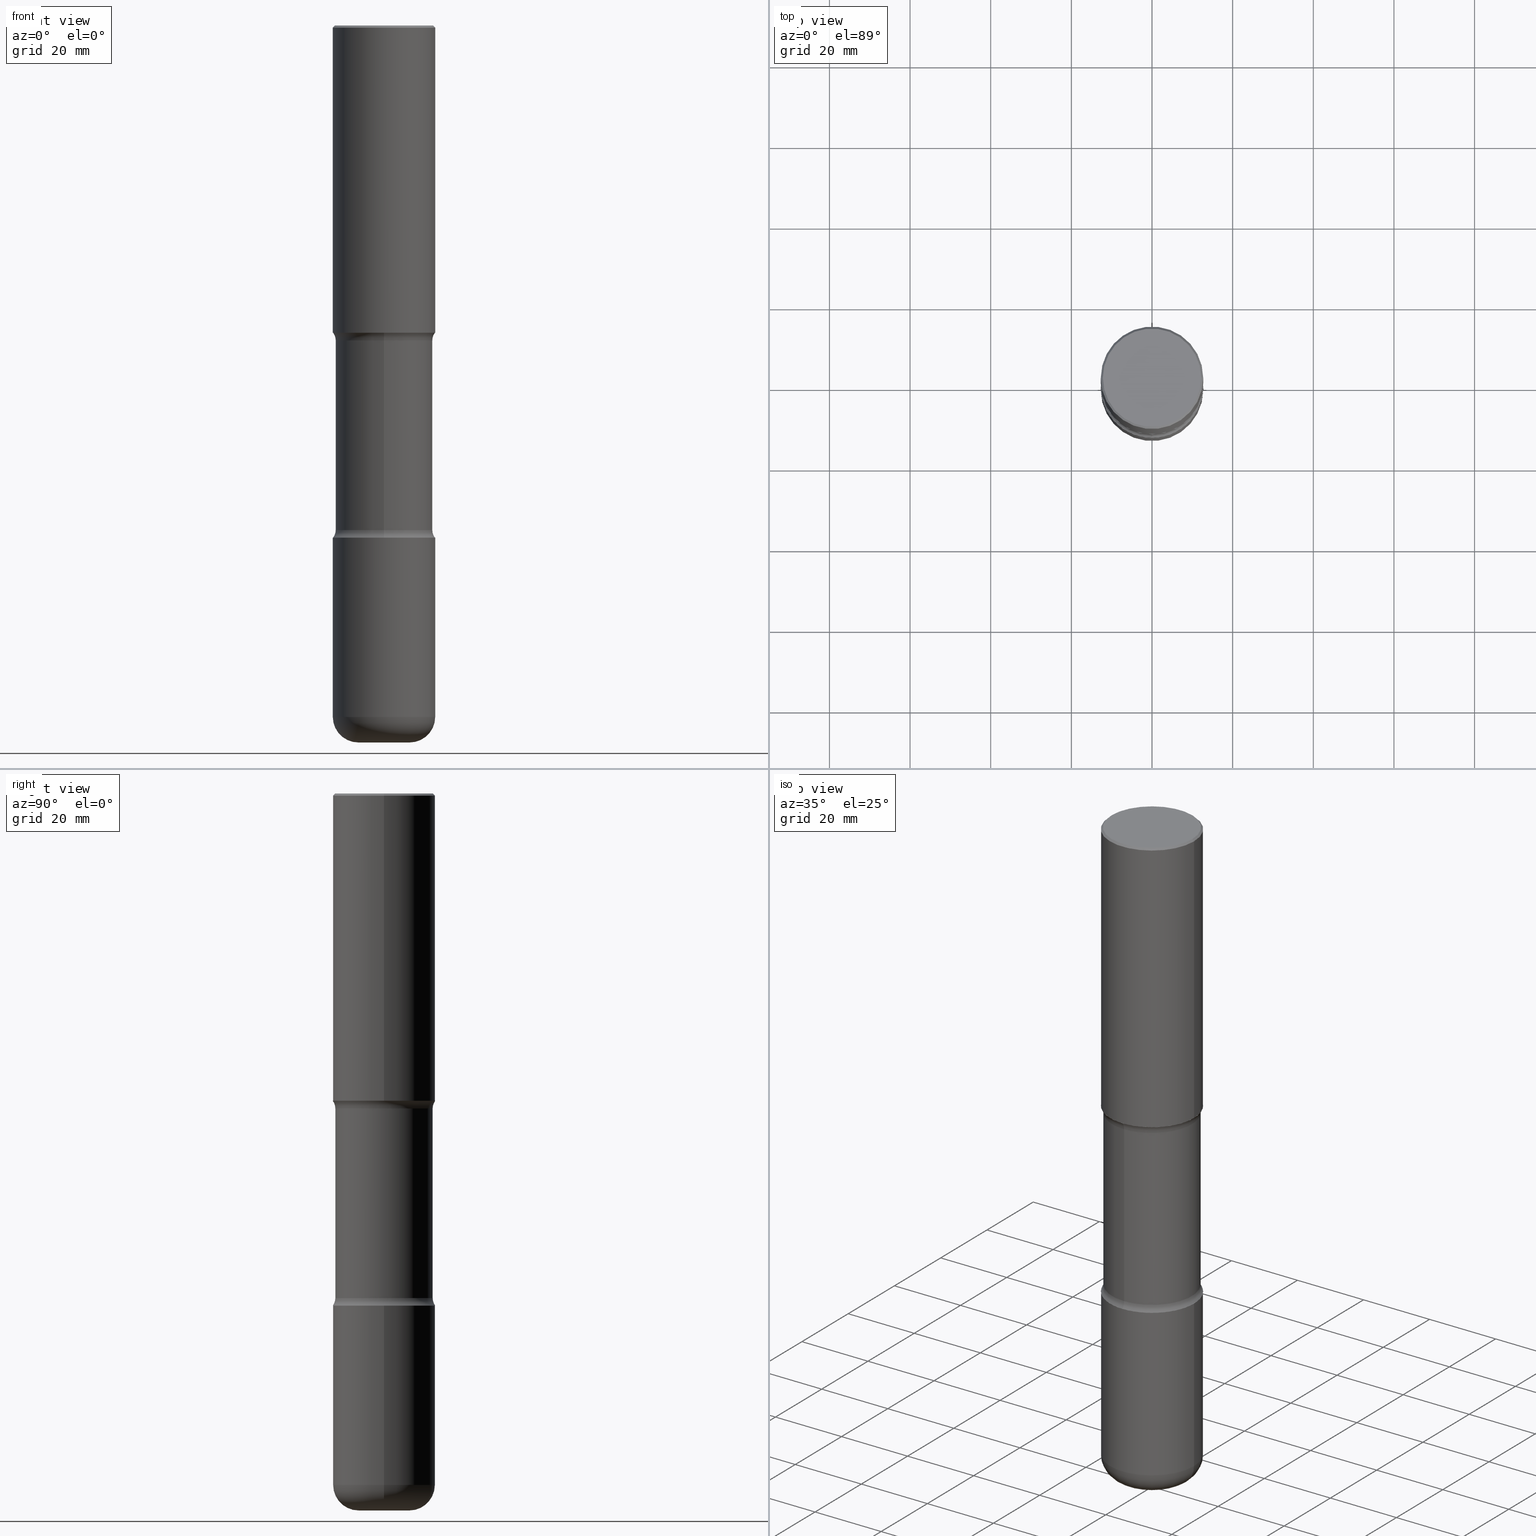
[diagram: canonical four-view strip — front | top / right | iso, engineering-drawing reading convention]
A machine part, canonical four-view strip (front | top / right | iso — engineering-drawing reading convention). The complete STEP part file that produces these views, byte-faithful:
ISO-10303-21;
HEADER;
FILE_DESCRIPTION (( 'STEP AP203' ),
    '1' );
FILE_NAME ('37982.STEP',
    '2024-03-02T02:05:53',
    ( '' ),
    ( '' ),
    'SwSTEP 2.0',
    'SolidWorks 2023',
    '' );
FILE_SCHEMA (( 'CONFIG_CONTROL_DESIGN' ));
ENDSEC;

DATA;
#1 = CARTESIAN_POINT ( 'NONE',  ( 7.336406418555407548E-29, -1.047444401652943320E-14, -2.999999999999999112 ) ) ;
#2 = CC_DESIGN_PERSON_AND_ORGANIZATION_ASSIGNMENT ( #184, #309, ( #128 ) ) ;
#3 = CARTESIAN_POINT ( 'NONE',  ( 3.316907271901148659E-15, 0.4749999999999757194, -7.000000000000000000 ) ) ;
#4 = VECTOR ( 'NONE', #78, 39.37007874015748143 ) ;
#5 = DIRECTION ( 'NONE',  ( 2.438088387897960049E-29, -3.491481338843145188E-15, -1.000000000000000000 ) ) ;
#6 = DIRECTION ( 'NONE',  ( 1.000000000000000000, -6.860497997771530774E-15, 4.841678745011831520E-29 ) ) ;
#7 = APPLICATION_PROTOCOL_DEFINITION ( 'international standard', 'config_control_design', 1994, #353 ) ;
#8 = CARTESIAN_POINT ( 'NONE',  ( 0.4999999999999999445, -3.500078625662628685E-15, -0.02000000000000013572 ) ) ;
#9 = DATE_AND_TIME ( #399, #245 ) ;
#10 = VECTOR ( 'NONE', #517, 39.37007874015748143 ) ;
#11 = CIRCLE ( 'NONE', #547, 0.2500000000000004996 ) ;
#12 = CIRCLE ( 'NONE', #113, 0.2500000000000004996 ) ;
#13 = ORIENTED_EDGE ( 'NONE', *, *, #262, .T. ) ;
#14 = ORIENTED_EDGE ( 'NONE', *, *, #179, .T. ) ;
#15 = APPROVAL_STATUS ( 'not_yet_approved' ) ;
#16 = ORIENTED_EDGE ( 'NONE', *, *, #457, .F. ) ;
#17 = EDGE_CURVE ( 'NONE', #234, #231, #11, .T. ) ;
#18 = EDGE_CURVE ( 'NONE', #493, #465, #300, .T. ) ;
#19 = CARTESIAN_POINT ( 'NONE',  ( 0.2500000000000004996, -2.531323970661280518E-14, -6.750000000000000888 ) ) ;
#20 = VECTOR ( 'NONE', #323, 39.37007874015748143 ) ;
#21 = ADVANCED_BREP_SHAPE_REPRESENTATION ( '37982', ( #411, #404, #420, #556 ), #328 ) ;
#22 = CARTESIAN_POINT ( 'NONE',  ( 0.000000000000000000, 0.000000000000000000, 0.000000000000000000 ) ) ;
#23 = DIRECTION ( 'NONE',  ( -2.445468806185136597E-29, 3.491481338843145583E-15, 1.000000000000000000 ) ) ;
#24 = DIRECTION ( 'NONE',  ( 6.860497997771531562E-15, 1.000000000000000000, 0.000000000000000000 ) ) ;
#25 = CC_DESIGN_PERSON_AND_ORGANIZATION_ASSIGNMENT ( #485, #316, ( #128 ) ) ;
#26 = EDGE_CURVE ( 'NONE', #538, #551, #248, .T. ) ;
#27 = CIRCLE ( 'NONE', #357, 0.4750000000000001443 ) ;
#28 = FACE_OUTER_BOUND ( 'NONE', #428, .T. ) ;
#29 = CONICAL_SURFACE ( 'NONE', #219, 0.4999999999999999445, 0.7853981633974477239 ) ;
#30 = ORIENTED_EDGE ( 'NONE', *, *, #17, .F. ) ;
#31 = EDGE_CURVE ( 'NONE', #382, #143, #459, .T. ) ;
#32 = ORIENTED_EDGE ( 'NONE', *, *, #548, .F. ) ;
#33 = CARTESIAN_POINT ( 'NONE',  ( -3.430248998885697150E-15, -0.5000000000000112133, -2.999999999999997335 ) ) ;
#34 = ORIENTED_EDGE ( 'NONE', *, *, #308, .F. ) ;
#35 = DIRECTION ( 'NONE',  ( 6.982962677686265922E-15, 1.000000000000000000, -2.300503573612011028E-15 ) ) ;
#36 = DIRECTION ( 'NONE',  ( 6.982962677686266711E-15, 1.000000000000000000, -4.370956789862819572E-15 ) ) ;
#37 = DIRECTION ( 'NONE',  ( 1.000000000000000000, -6.982962677686262766E-15, 0.000000000000000000 ) ) ;
#38 = AXIS2_PLACEMENT_3D ( 'NONE', #124, #304, #430 ) ;
#39 = CARTESIAN_POINT ( 'NONE',  ( -4.116298798662799188E-15, -0.6000000000000174083, -4.924999999999996270 ) ) ;
#40 = DIRECTION ( 'NONE',  ( -2.445468806185136597E-29, 3.491481338843145583E-15, 1.000000000000000000 ) ) ;
#41 = DIRECTION ( 'NONE',  ( 1.000000000000000000, -6.982962677686265922E-15, 4.876176775795935793E-29 ) ) ;
#42 = EDGE_CURVE ( 'NONE', #105, #551, #213, .T. ) ;
#43 = DIRECTION ( 'NONE',  ( -6.982962677686264344E-15, -1.000000000000000000, 0.000000000000000000 ) ) ;
#44 = DIRECTION ( 'NONE',  ( -2.445468806185136597E-29, 3.491481338843145583E-15, 1.000000000000000000 ) ) ;
#45 = CARTESIAN_POINT ( 'NONE',  ( 0.4799999999999998157, -3.396558832296481310E-15, 1.707404996042524007E-17 ) ) ;
#46 = ADVANCED_FACE ( 'NONE', ( #384 ), #415, .F. ) ;
#47 = DATE_TIME_ROLE ( 'classification_date' ) ;
#48 = LOCAL_TIME ( 21, 5, 53.00000000000000000, #186 ) ;
#49 = CIRCLE ( 'NONE', #389, 0.2500000000000004996 ) ;
#50 = COORDINATED_UNIVERSAL_TIME_OFFSET ( 5, 0, .BEHIND. ) ;
#51 = LINE ( 'NONE', #8, #86 ) ;
#52 = EDGE_CURVE ( 'NONE', #110, #105, #290, .T. ) ;
#53 = PERSON_AND_ORGANIZATION ( #354, #201 ) ;
#54 = EDGE_CURVE ( 'NONE', #231, #198, #12, .T. ) ;
#55 = CYLINDRICAL_SURFACE ( 'NONE', #350, 0.5000000000000004441 ) ;
#56 = TOROIDAL_SURFACE ( 'NONE', #376, 0.2500000000000004996, 0.2500000000000004996 ) ;
#57 = AXIS2_PLACEMENT_3D ( 'NONE', #499, #511, #71 ) ;
#58 = ORIENTED_EDGE ( 'NONE', *, *, #141, .T. ) ;
#59 = VERTEX_POINT ( 'NONE', #159 ) ;
#60 = CC_DESIGN_PERSON_AND_ORGANIZATION_ASSIGNMENT ( #178, #266, ( #89 ) ) ;
#61 = EDGE_LOOP ( 'NONE', ( #362, #34, #329, #58 ) ) ;
#62 = ORIENTED_EDGE ( 'NONE', *, *, #107, .T. ) ;
#63 = DIRECTION ( 'NONE',  ( 1.000000000000000000, -6.982962677686264344E-15, 0.000000000000000000 ) ) ;
#64 = ORIENTED_EDGE ( 'NONE', *, *, #479, .T. ) ;
#65 = AXIS2_PLACEMENT_3D ( 'NONE', #478, #260, #36 ) ;
#66 = ORIENTED_EDGE ( 'NONE', *, *, #179, .F. ) ;
#67 = DIRECTION ( 'NONE',  ( -2.445468806185136597E-29, 3.491481338843145583E-15, 1.000000000000000000 ) ) ;
#68 = VERTEX_POINT ( 'NONE', #45 ) ;
#69 = CARTESIAN_POINT ( 'NONE',  ( 7.336406418555407548E-29, -1.047444401652943320E-14, -2.999999999999999112 ) ) ;
#70 = CARTESIAN_POINT ( 'NONE',  ( -4.116298798662844153E-15, -0.6000000000000108580, -3.074999999999998401 ) ) ;
#71 = DIRECTION ( 'NONE',  ( 6.982962677686265133E-15, 1.000000000000000000, -3.278217592397113101E-15 ) ) ;
#72 = DIRECTION ( 'NONE',  ( 1.000000000000000000, -6.982962677686265133E-15, 4.883557194083112340E-29 ) ) ;
#73 = CARTESIAN_POINT ( 'NONE',  ( -0.2500000000000004996, -2.133939894544624343E-14, -7.000000000000001776 ) ) ;
#74 = ORIENTED_EDGE ( 'NONE', *, *, #196, .T. ) ;
#75 = CARTESIAN_POINT ( 'NONE',  ( -0.4999999999999999445, 3.421651712066269663E-15, -0.02000000000000013572 ) ) ;
#76 = CIRCLE ( 'NONE', #467, 0.5000000000000002220 ) ;
#77 = CC_DESIGN_PERSON_AND_ORGANIZATION_ASSIGNMENT ( #491, #95, ( #339 ) ) ;
#78 = DIRECTION ( 'NONE',  ( 2.495638921910708014E-29, -3.419634877618474112E-15, -1.000000000000000000 ) ) ;
#79 = LINE ( 'NONE', #3, #265 ) ;
#80 = ORIENTED_EDGE ( 'NONE', *, *, #17, .T. ) ;
#81 = ADVANCED_FACE ( 'NONE', ( #392 ), #439, .F. ) ;
#82 = CARTESIAN_POINT ( 'NONE',  ( 7.336406418555407548E-29, -1.047444401652943320E-14, -2.999999999999999112 ) ) ;
#83 = PLANE ( 'NONE',  #492 ) ;
#84 = CIRCLE ( 'NONE', #367, 0.5000000000000005551 ) ;
#85 = DIRECTION ( 'NONE',  ( -1.000000000000000000, 6.982962677686265922E-15, -4.876176775795935793E-29 ) ) ;
#86 = VECTOR ( 'NONE', #180, 39.37007874015748143 ) ;
#87 = FACE_OUTER_BOUND ( 'NONE', #338, .T. ) ;
#88 = FACE_OUTER_BOUND ( 'NONE', #425, .T. ) ;
#89 = PRODUCT_DEFINITION ( 'UNKNOWN', '', #128, #289 ) ;
#90 = CARTESIAN_POINT ( 'NONE',  ( -0.5000000000000004441, 3.552713678800504085E-15, -2.459467545127455133E-29 ) ) ;
#91 = CARTESIAN_POINT ( 'NONE',  ( -3.344492773913550718E-15, -0.4750000000000109690, -3.074999999999998401 ) ) ;
#92 = DIRECTION ( 'NONE',  ( -2.445468806185136877E-29, 3.491481338843145188E-15, 1.000000000000000000 ) ) ;
#93 = AXIS2_PLACEMENT_3D ( 'NONE', #301, #342, #132 ) ;
#94 = AXIS2_PLACEMENT_3D ( 'NONE', #151, #494, #72 ) ;
#95 = PERSON_AND_ORGANIZATION_ROLE ( 'classification_officer' ) ;
#96 = ADVANCED_FACE ( 'NONE', ( #352 ), #280, .T. ) ;
#97 = APPROVAL_DATE_TIME ( #9, #416 ) ;
#98 = EDGE_LOOP ( 'NONE', ( #312, #469 ) ) ;
#99 = CALENDAR_DATE ( 2024, 1, 3 ) ;
#100 = ORIENTED_EDGE ( 'NONE', *, *, #296, .F. ) ;
#101 = VERTEX_POINT ( 'NONE', #218 ) ;
#102 = CC_DESIGN_APPROVAL ( #424, ( #128 ) ) ;
#103 = VECTOR ( 'NONE', #414, 39.37007874015748143 ) ;
#104 = PERSON_AND_ORGANIZATION_ROLE ( 'design_owner' ) ;
#105 = VERTEX_POINT ( 'NONE', #133 ) ;
#106 = CARTESIAN_POINT ( 'NONE',  ( 7.236066187104263592E-29, -1.061813693897877772E-14, -2.999999999999999112 ) ) ;
#107 = EDGE_CURVE ( 'NONE', #293, #110, #147, .T. ) ;
#108 = CARTESIAN_POINT ( 'NONE',  ( 0.2500000000000004996, -2.618611004132359483E-14, -7.000000000000001776 ) ) ;
#109 = ADVANCED_FACE ( 'NONE', ( #513 ), #559, .T. ) ;
#110 = VERTEX_POINT ( 'NONE', #442 ) ;
#111 = ORIENTED_EDGE ( 'NONE', *, *, #250, .F. ) ;
#112 = CARTESIAN_POINT ( 'NONE',  ( 7.424434616114947917E-29, -1.087289751662588659E-14, -3.075000000000000178 ) ) ;
#113 = AXIS2_PLACEMENT_3D ( 'NONE', #440, #264, #155 ) ;
#114 = LINE ( 'NONE', #190, #387 ) ;
#115 = CARTESIAN_POINT ( 'NONE',  ( 4.189777606611881511E-15, 0.5999999999999829914, -4.925000000000000711 ) ) ;
#116 = CYLINDRICAL_SURFACE ( 'NONE', #386, 0.5000000000000004441 ) ;
#117 = ORIENTED_EDGE ( 'NONE', *, *, #438, .T. ) ;
#118 = CYLINDRICAL_SURFACE ( 'NONE', #163, 0.5000000000000001110 ) ;
#119 = LOCAL_TIME ( 21, 5, 53.00000000000000000, #269 ) ;
#120 = CARTESIAN_POINT ( 'NONE',  ( 1.204393387046179415E-28, -1.719554559380248700E-14, -4.924999999999998046 ) ) ;
#121 = EDGE_CURVE ( 'NONE', #143, #382, #166, .T. ) ;
#122 = CARTESIAN_POINT ( 'NONE',  ( 1.222734403092568074E-28, -1.745740669421572673E-14, -4.999999999999999112 ) ) ;
#123 = ORIENTED_EDGE ( 'NONE', *, *, #496, .F. ) ;
#124 = CARTESIAN_POINT ( 'NONE',  ( 7.336406418555407548E-29, -1.047444401652943320E-14, -2.999999999999999112 ) ) ;
#125 = PLANE ( 'NONE',  #519 ) ;
#126 = DIRECTION ( 'NONE',  ( -2.445468806185136597E-29, 3.491481338843145583E-15, 1.000000000000000000 ) ) ;
#127 = CC_DESIGN_DATE_AND_TIME_ASSIGNMENT ( #136, #145, ( #89 ) ) ;
#128 = PRODUCT_DEFINITION_FORMATION_WITH_SPECIFIED_SOURCE ( 'ANY', '', #270, .NOT_KNOWN. ) ;
#129 = CARTESIAN_POINT ( 'NONE',  ( 3.491481338843209480E-15, 0.4999999999999900080, -3.000000000000000888 ) ) ;
#130 = AXIS2_PLACEMENT_3D ( 'NONE', #106, #274, #409 ) ;
#131 = DIRECTION ( 'NONE',  ( -1.000000000000000000, 6.982962677686266711E-15, 0.000000000000000000 ) ) ;
#132 = DIRECTION ( 'NONE',  ( -6.982962677686264344E-15, -1.000000000000000000, 0.000000000000000000 ) ) ;
#133 = CARTESIAN_POINT ( 'NONE',  ( 3.316907271901096594E-15, 0.4749999999999827693, -4.924999999999999822 ) ) ;
#134 = PERSON_AND_ORGANIZATION ( #354, #201 ) ;
#135 = DIRECTION ( 'NONE',  ( -1.000000000000000000, 6.982962677686266711E-15, 0.000000000000000000 ) ) ;
#136 = DATE_AND_TIME ( #355, #226 ) ;
#137 = CIRCLE ( 'NONE', #236, 0.4750000000000001443 ) ;
#138 = AXIS2_PLACEMENT_3D ( 'NONE', #160, #336, #426 ) ;
#139 = AXIS2_PLACEMENT_3D ( 'NONE', #69, #239, #286 ) ;
#140 = UNCERTAINTY_MEASURE_WITH_UNIT (LENGTH_MEASURE( 1.000000000000000082E-05 ), #212, 'distance_accuracy_value', 'NONE');
#141 = EDGE_CURVE ( 'NONE', #229, #59, #360, .T. ) ;
#142 = APPROVAL_ROLE ( '' ) ;
#143 = VERTEX_POINT ( 'NONE', #297 ) ;
#144 = ORIENTED_EDGE ( 'NONE', *, *, #52, .T. ) ;
#145 = DATE_TIME_ROLE ( 'creation_date' ) ;
#146 = ORIENTED_EDGE ( 'NONE', *, *, #308, .T. ) ;
#147 = CIRCLE ( 'NONE', #65, 0.5000000000000002220 ) ;
#148 = DIRECTION ( 'NONE',  ( 2.495638921910708014E-29, -3.419634877618474112E-15, -1.000000000000000000 ) ) ;
#149 = EDGE_CURVE ( 'NONE', #59, #229, #183, .T. ) ;
#150 = ORIENTED_EDGE ( 'NONE', *, *, #445, .T. ) ;
#151 = CARTESIAN_POINT ( 'NONE',  ( 1.650691444174967427E-28, -2.356749903719123535E-14, -6.750000000000000888 ) ) ;
#152 = ADVANCED_FACE ( 'NONE', ( #471 ), #83, .F. ) ;
#153 = CARTESIAN_POINT ( 'NONE',  ( -0.5000000000000002220, -1.695973918690297853E-14, -4.999999999999999112 ) ) ;
#154 = CIRCLE ( 'NONE', #498, 0.2500000000000004996 ) ;
#155 = DIRECTION ( 'NONE',  ( -1.000000000000000000, 7.105427357600997126E-15, 0.000000000000000000 ) ) ;
#156 = CIRCLE ( 'NONE', #473, 0.4799999999999998157 ) ;
#157 = DIRECTION ( 'NONE',  ( 2.495638921910708014E-29, -3.419634877618474112E-15, -1.000000000000000000 ) ) ;
#158 = DIRECTION ( 'NONE',  ( 6.982962677686265133E-15, 1.000000000000000000, -3.450755360418015555E-15 ) ) ;
#159 = CARTESIAN_POINT ( 'NONE',  ( 0.4999999999999999445, -3.500078625662628685E-15, -0.02000000000000013572 ) ) ;
#160 = CARTESIAN_POINT ( 'NONE',  ( 1.222734403092568074E-28, -1.745740669421572673E-14, -4.999999999999999112 ) ) ;
#161 = DIRECTION ( 'NONE',  ( -1.000000000000000000, 6.982962677686265922E-15, -4.883557194083112340E-29 ) ) ;
#162 = EDGE_CURVE ( 'NONE', #110, #293, #76, .T. ) ;
#163 = AXIS2_PLACEMENT_3D ( 'NONE', #374, #67, #381 ) ;
#164 = CLOSED_SHELL ( 'NONE', ( #244, #541, #109, #283, #332, #502 ) ) ;
#165 = CARTESIAN_POINT ( 'NONE',  ( 0.000000000000000000, 0.000000000000000000, 0.000000000000000000 ) ) ;
#166 = CIRCLE ( 'NONE', #38, 0.5000000000000002220 ) ;
#167 = DIRECTION ( 'NONE',  ( 2.438088387897960049E-29, -3.491481338843145188E-15, -1.000000000000000000 ) ) ;
#168 =( NAMED_UNIT ( * ) SI_UNIT ( $, .STERADIAN. ) SOLID_ANGLE_UNIT ( ) );
#169 = CARTESIAN_POINT ( 'NONE',  ( 7.424434616114947917E-29, -1.087289751662588659E-14, -3.075000000000000178 ) ) ;
#170 = DIMENSIONAL_EXPONENTS ( 1.000000000000000000, 0.000000000000000000, 0.000000000000000000, 0.000000000000000000, 0.000000000000000000, 0.000000000000000000, 0.000000000000000000 ) ;
#171 = CARTESIAN_POINT ( 'NONE',  ( 4.890937612370306439E-31, -6.982962677686338448E-17, -0.02000000000000013572 ) ) ;
#172 = APPROVAL_PERSON_ORGANIZATION ( #53, #416, #358 ) ;
#173 = AXIS2_PLACEMENT_3D ( 'NONE', #115, #161, #43 ) ;
#174 = CARTESIAN_POINT ( 'NONE',  ( 1.222734403092568074E-28, -1.745740669421572673E-14, -4.999999999999999112 ) ) ;
#175 = EDGE_CURVE ( 'NONE', #293, #551, #484, .T. ) ;
#176 = APPROVAL_STATUS ( 'not_yet_approved' ) ;
#177 = DIRECTION ( 'NONE',  ( -1.000000000000000000, 6.982962677686265922E-15, -4.876176775795935793E-29 ) ) ;
#178 = PERSON_AND_ORGANIZATION ( #354, #201 ) ;
#179 = EDGE_CURVE ( 'NONE', #198, #408, #351, .T. ) ;
#180 = DIRECTION ( 'NONE',  ( 0.7071067811865471286, -7.319954787623254468E-15, -0.7071067811865479058 ) ) ;
#181 = PRODUCT_DEFINITION_SHAPE ( 'NONE', 'NONE',  #89 ) ;
#182 = CC_DESIGN_APPROVAL ( #416, ( #339 ) ) ;
#183 = CIRCLE ( 'NONE', #318, 0.4999999999999999445 ) ;
#184 = PERSON_AND_ORGANIZATION ( #354, #201 ) ;
#185 = ORIENTED_EDGE ( 'NONE', *, *, #349, .T. ) ;
#186 = COORDINATED_UNIVERSAL_TIME_OFFSET ( 5, 0, .BEHIND. ) ;
#187 = ORIENTED_EDGE ( 'NONE', *, *, #54, .F. ) ;
#188 = EDGE_LOOP ( 'NONE', ( #187, #195, #199, #273 ) ) ;
#189 = ADVANCED_FACE ( 'NONE', ( #391 ), #267, .F. ) ;
#190 = CARTESIAN_POINT ( 'NONE',  ( -0.5000000000000001110, 3.552713678800501718E-15, -2.459467545127453732E-29 ) ) ;
#191 = ORIENTED_EDGE ( 'NONE', *, *, #149, .F. ) ;
#192 = AXIS2_PLACEMENT_3D ( 'NONE', #472, #167, #220 ) ;
#193 = ORIENTED_EDGE ( 'NONE', *, *, #321, .F. ) ;
#194 = DIRECTION ( 'NONE',  ( -2.445468806185136597E-29, 3.491481338843145583E-15, 1.000000000000000000 ) ) ;
#195 = ORIENTED_EDGE ( 'NONE', *, *, #407, .T. ) ;
#196 = EDGE_CURVE ( 'NONE', #198, #277, #501, .T. ) ;
#197 = DIRECTION ( 'NONE',  ( -2.445468806185136597E-29, 3.491481338843145583E-15, 1.000000000000000000 ) ) ;
#198 = VERTEX_POINT ( 'NONE', #523 ) ;
#199 = ORIENTED_EDGE ( 'NONE', *, *, #223, .T. ) ;
#200 = DIRECTION ( 'NONE',  ( 6.982962677686265133E-15, 1.000000000000000000, -3.419634877618474112E-15 ) ) ;
#201 = ORGANIZATION ( 'UNSPECIFIED', 'UNSPECIFIED', '' ) ;
#202 = ORIENTED_EDGE ( 'NONE', *, *, #321, .T. ) ;
#203 = DIRECTION ( 'NONE',  ( 6.982962677686265133E-15, 1.000000000000000000, -3.419634877618474112E-15 ) ) ;
#204 = ADVANCED_FACE ( 'NONE', ( #87 ), #436, .F. ) ;
#205 = CARTESIAN_POINT ( 'NONE',  ( 1.650691444174967427E-28, -2.356749903719123535E-14, -6.750000000000000888 ) ) ;
#206 = CARTESIAN_POINT ( 'NONE',  ( 0.000000000000000000, 0.000000000000000000, 0.000000000000000000 ) ) ;
#207 = FACE_OUTER_BOUND ( 'NONE', #453, .T. ) ;
#208 = CARTESIAN_POINT ( 'NONE',  ( 1.204017111178237438E-28, -1.720093407839433761E-14, -4.924999999999998046 ) ) ;
#209 = DIRECTION ( 'NONE',  ( 6.982962677686265922E-15, 1.000000000000000000, -2.300503573612011028E-15 ) ) ;
#210 = DIRECTION ( 'NONE',  ( 1.000000000000000000, -6.982962677686266711E-15, 0.000000000000000000 ) ) ;
#211 = ORIENTED_EDGE ( 'NONE', *, *, #141, .F. ) ;
#212 =( CONVERSION_BASED_UNIT ( 'INCH', #393 ) LENGTH_UNIT ( ) NAMED_UNIT ( #170 ) );
#213 = CIRCLE ( 'NONE', #369, 0.4749999999999999778 ) ;
#214 = ORIENTED_EDGE ( 'NONE', *, *, #18, .F. ) ;
#215 = DIRECTION ( 'NONE',  ( 2.495638921910708014E-29, -3.419634877618474112E-15, -1.000000000000000000 ) ) ;
#216 =( LENGTH_UNIT ( ) NAMED_UNIT ( * ) SI_UNIT ( $, .METRE. ) );
#217 = DIRECTION ( 'NONE',  ( 6.982962677686265922E-15, 1.000000000000000000, -3.419634877618474112E-15 ) ) ;
#218 = CARTESIAN_POINT ( 'NONE',  ( 0.5000000000000002220, -2.094888803305886009E-14, -4.999999999999999112 ) ) ;
#219 = AXIS2_PLACEMENT_3D ( 'NONE', #171, #348, #131 ) ;
#220 = DIRECTION ( 'NONE',  ( -1.000000000000000000, 6.982962677686265922E-15, -4.876176775795935793E-29 ) ) ;
#221 = ADVANCED_FACE ( 'NONE', ( #263 ), #29, .T. ) ;
#222 = MECHANICAL_CONTEXT ( 'NONE', #233, 'mechanical' ) ;
#223 = EDGE_CURVE ( 'NONE', #234, #277, #49, .T. ) ;
#224 = COORDINATED_UNIVERSAL_TIME_OFFSET ( 5, 0, .BEHIND. ) ;
#225 = EDGE_LOOP ( 'NONE', ( #111, #214 ) ) ;
#226 = LOCAL_TIME ( 21, 5, 53.00000000000000000, #488 ) ;
#227 = ORIENTED_EDGE ( 'NONE', *, *, #18, .T. ) ;
#228 = CIRCLE ( 'NONE', #554, 0.4799999999999998157 ) ;
#229 = VERTEX_POINT ( 'NONE', #325 ) ;
#230 = EDGE_LOOP ( 'NONE', ( #80, #363, #32, #341 ) ) ;
#231 = VERTEX_POINT ( 'NONE', #73 ) ;
#232 = ORIENTED_EDGE ( 'NONE', *, *, #349, .F. ) ;
#233 = APPLICATION_CONTEXT ( 'configuration controlled 3d designs of mechanical parts and assemblies' ) ;
#234 = VERTEX_POINT ( 'NONE', #108 ) ;
#235 = CARTESIAN_POINT ( 'NONE',  ( 0.5000000000000001110, -3.491481338843134539E-15, 2.438088387897968457E-29 ) ) ;
#236 = AXIS2_PLACEMENT_3D ( 'NONE', #371, #422, #158 ) ;
#237 = FACE_OUTER_BOUND ( 'NONE', #452, .T. ) ;
#238 = EDGE_LOOP ( 'NONE', ( #146, #431 ) ) ;
#239 = DIRECTION ( 'NONE',  ( -2.445468806185136597E-29, 3.491481338843145583E-15, 1.000000000000000000 ) ) ;
#240 = DIRECTION ( 'NONE',  ( 2.495638921910708014E-29, -3.419634877618474112E-15, -1.000000000000000000 ) ) ;
#241 = EDGE_LOOP ( 'NONE', ( #315, #515, #390, #232 ) ) ;
#242 = DIRECTION ( 'NONE',  ( -2.445468806185136597E-29, 3.491481338843145583E-15, 1.000000000000000000 ) ) ;
#243 = APPROVAL ( #15, 'UNSPECIFIED' ) ;
#244 = ADVANCED_FACE ( 'NONE', ( #207 ), #55, .T. ) ;
#245 = LOCAL_TIME ( 21, 5, 53.00000000000000000, #224 ) ;
#246 = VECTOR ( 'NONE', #92, 39.37007874015748143 ) ;
#247 = FACE_OUTER_BOUND ( 'NONE', #542, .T. ) ;
#248 = LINE ( 'NONE', #460, #4 ) ;
#249 = CARTESIAN_POINT ( 'NONE',  ( 1.721862187474709565E-28, -2.429667644945267101E-14, -6.999999999999998224 ) ) ;
#250 = EDGE_CURVE ( 'NONE', #465, #493, #257, .T. ) ;
#251 = DIRECTION ( 'NONE',  ( 2.495638921910707734E-29, -3.419634877618474112E-15, -1.000000000000000000 ) ) ;
#252 = ORIENTED_EDGE ( 'NONE', *, *, #447, .T. ) ;
#253 = CARTESIAN_POINT ( 'NONE',  ( 1.650691444174967427E-28, -2.356749903719123535E-14, -6.750000000000000888 ) ) ;
#254 = CIRCLE ( 'NONE', #545, 0.1250000000000001110 ) ;
#255 = CARTESIAN_POINT ( 'NONE',  ( 4.890937612370306439E-31, -6.982962677686338448E-17, -0.02000000000000013572 ) ) ;
#256 = FACE_OUTER_BOUND ( 'NONE', #230, .T. ) ;
#257 = CIRCLE ( 'NONE', #130, 0.5000000000000004441 ) ;
#258 = DIRECTION ( 'NONE',  ( 6.982962677686265133E-15, 1.000000000000000000, -3.419634877618474112E-15 ) ) ;
#259 = DIRECTION ( 'NONE',  ( 2.495638921910708014E-29, -3.419634877618474112E-15, -1.000000000000000000 ) ) ;
#260 = DIRECTION ( 'NONE',  ( 2.495638921910708014E-29, -3.419634877618474112E-15, -1.000000000000000000 ) ) ;
#261 = DIRECTION ( 'NONE',  ( -2.445468806185136597E-29, 3.491481338843145583E-15, 1.000000000000000000 ) ) ;
#262 = EDGE_CURVE ( 'NONE', #68, #59, #51, .T. ) ;
#263 = FACE_OUTER_BOUND ( 'NONE', #489, .T. ) ;
#264 = DIRECTION ( 'NONE',  ( 7.105427357601001859E-15, 1.000000000000000000, -3.491481338843145583E-15 ) ) ;
#265 = VECTOR ( 'NONE', #522, 39.37007874015748143 ) ;
#266 = PERSON_AND_ORGANIZATION_ROLE ( 'creator' ) ;
#267 = TOROIDAL_SURFACE ( 'NONE', #434, 0.5999999999999999778, 0.1250000000000001110 ) ;
#268 = DIRECTION ( 'NONE',  ( 1.000000000000000000, -6.982962677686266711E-15, 4.876176775795935232E-29 ) ) ;
#269 = COORDINATED_UNIVERSAL_TIME_OFFSET ( 5, 0, .BEHIND. ) ;
#270 = PRODUCT ( '37982', '37982', '', ( #222 ) ) ;
#271 = SHAPE_DEFINITION_REPRESENTATION ( #181, #21 ) ;
#272 = CARTESIAN_POINT ( 'NONE',  ( 0.000000000000000000, 0.000000000000000000, 0.000000000000000000 ) ) ;
#273 = ORIENTED_EDGE ( 'NONE', *, *, #196, .F. ) ;
#274 = DIRECTION ( 'NONE',  ( 2.495638921910708014E-29, -3.419634877618474112E-15, -1.000000000000000000 ) ) ;
#275 = CC_DESIGN_PERSON_AND_ORGANIZATION_ASSIGNMENT ( #444, #104, ( #270 ) ) ;
#276 = CARTESIAN_POINT ( 'NONE',  ( -0.5000000000000002220, -1.719423142852643572E-15, -2.999999999999999112 ) ) ;
#277 = VERTEX_POINT ( 'NONE', #356 ) ;
#278 = DIRECTION ( 'NONE',  ( 1.000000000000000000, -6.982962677686266711E-15, 4.876431871984415397E-29 ) ) ;
#279 = APPROVAL_PERSON_ORGANIZATION ( #134, #424, #486 ) ;
#280 = CONICAL_SURFACE ( 'NONE', #307, 0.4999999999999999445, 0.7853981633974477239 ) ;
#281 = DIRECTION ( 'NONE',  ( -2.445468806185136597E-29, 3.491481338843145583E-15, 1.000000000000000000 ) ) ;
#282 = CARTESIAN_POINT ( 'NONE',  ( 3.316907271901051235E-15, 0.4749999999999892641, -3.075000000000001510 ) ) ;
#283 = ADVANCED_FACE ( 'NONE', ( #526 ), #402, .T. ) ;
#284 = PRODUCT_RELATED_PRODUCT_CATEGORY ( 'detail', '', ( #270 ) ) ;
#285 = DIRECTION ( 'NONE',  ( 2.495638921910708014E-29, -3.419634877618474112E-15, -1.000000000000000000 ) ) ;
#286 = DIRECTION ( 'NONE',  ( 1.000000000000000000, -6.982962677686267499E-15, 0.000000000000000000 ) ) ;
#287 = DIRECTION ( 'NONE',  ( -2.495638921910707734E-29, 3.419634877618474112E-15, 1.000000000000000000 ) ) ;
#288 = APPROVAL_PERSON_ORGANIZATION ( #524, #243, #142 ) ;
#289 = DESIGN_CONTEXT ( 'detailed design', #353, 'design' ) ;
#290 = CIRCLE ( 'NONE', #173, 0.1250000000000002498 ) ;
#291 = DIRECTION ( 'NONE',  ( 2.495638921910708014E-29, -3.419634877618474112E-15, -1.000000000000000000 ) ) ;
#292 = DIRECTION ( 'NONE',  ( 6.982962677686265133E-15, 1.000000000000000000, -3.450755360418015555E-15 ) ) ;
#293 = VERTEX_POINT ( 'NONE', #311 ) ;
#294 = EDGE_CURVE ( 'NONE', #68, #322, #156, .T. ) ;
#295 = FACE_OUTER_BOUND ( 'NONE', #241, .T. ) ;
#296 = EDGE_CURVE ( 'NONE', #322, #229, #368, .T. ) ;
#297 = CARTESIAN_POINT ( 'NONE',  ( 0.5000000000000002220, -1.396592535537256813E-14, -2.999999999999999112 ) ) ;
#298 = CARTESIAN_POINT ( 'NONE',  ( 1.721862187474709565E-28, -2.429667644945267101E-14, -6.999999999999998224 ) ) ;
#299 = DIRECTION ( 'NONE',  ( 1.000000000000000000, -6.982962677686262766E-15, 0.000000000000000000 ) ) ;
#300 = CIRCLE ( 'NONE', #57, 0.5000000000000004441 ) ;
#301 = CARTESIAN_POINT ( 'NONE',  ( 4.189777606611833390E-15, 0.5999999999999890976, -3.075000000000002398 ) ) ;
#302 = DIRECTION ( 'NONE',  ( 2.445468806185136597E-29, -3.491481338843145583E-15, -1.000000000000000000 ) ) ;
#303 = FACE_OUTER_BOUND ( 'NONE', #98, .T. ) ;
#304 = DIRECTION ( 'NONE',  ( -2.445468806185136597E-29, 3.491481338843145583E-15, 1.000000000000000000 ) ) ;
#305 = CALENDAR_DATE ( 2024, 1, 3 ) ;
#306 = CARTESIAN_POINT ( 'NONE',  ( 4.890937612370306439E-31, -6.982962677686338448E-17, -0.02000000000000013572 ) ) ;
#307 = AXIS2_PLACEMENT_3D ( 'NONE', #255, #302, #135 ) ;
#308 = EDGE_CURVE ( 'NONE', #322, #68, #228, .T. ) ;
#309 = PERSON_AND_ORGANIZATION_ROLE ( 'creator' ) ;
#310 = AXIS2_PLACEMENT_3D ( 'NONE', #112, #148, #203 ) ;
#311 = CARTESIAN_POINT ( 'NONE',  ( -3.430248998885645480E-15, -0.5000000000000177636, -4.999999999999997335 ) ) ;
#312 = ORIENTED_EDGE ( 'NONE', *, *, #427, .T. ) ;
#313 = ADVANCED_FACE ( 'NONE', ( #506 ), #340, .F. ) ;
#314 = ORIENTED_EDGE ( 'NONE', *, *, #31, .T. ) ;
#315 = ORIENTED_EDGE ( 'NONE', *, *, #26, .F. ) ;
#316 = PERSON_AND_ORGANIZATION_ROLE ( 'design_supplier' ) ;
#317 = AXIS2_PLACEMENT_3D ( 'NONE', #165, #474, #512 ) ;
#318 = AXIS2_PLACEMENT_3D ( 'NONE', #306, #475, #388 ) ;
#319 = EDGE_LOOP ( 'NONE', ( #403, #150, #227, #497 ) ) ;
#320 = DIRECTION ( 'NONE',  ( 1.000000000000000000, -6.860497997771530774E-15, 4.841678745011831520E-29 ) ) ;
#321 = EDGE_CURVE ( 'NONE', #143, #59, #464, .T. ) ;
#322 = VERTEX_POINT ( 'NONE', #546 ) ;
#323 = DIRECTION ( 'NONE',  ( -0.7071067811865471286, 2.468850131082252722E-15, -0.7071067811865479058 ) ) ;
#324 = ORIENTED_EDGE ( 'NONE', *, *, #26, .T. ) ;
#325 = CARTESIAN_POINT ( 'NONE',  ( -0.4999999999999999445, 3.421651712066269663E-15, -0.02000000000000013572 ) ) ;
#326 = DIRECTION ( 'NONE',  ( 1.000000000000000000, -6.982962677686264344E-15, 0.000000000000000000 ) ) ;
#327 = DIRECTION ( 'NONE',  ( 1.000000000000000000, -6.982962677686266711E-15, 4.876431871984415397E-29 ) ) ;
#328 =( GEOMETRIC_REPRESENTATION_CONTEXT ( 3 ) GLOBAL_UNCERTAINTY_ASSIGNED_CONTEXT ( ( #140 ) ) GLOBAL_UNIT_ASSIGNED_CONTEXT ( ( #212, #429, #168 ) ) REPRESENTATION_CONTEXT ( 'NONE', 'WORKASPACE' ) );
#329 = ORIENTED_EDGE ( 'NONE', *, *, #296, .T. ) ;
#330 = DIRECTION ( 'NONE',  ( 1.000000000000000000, -6.982962677686264344E-15, 0.000000000000000000 ) ) ;
#331 = AXIS2_PLACEMENT_3D ( 'NONE', #1, #521, #41 ) ;
#332 = ADVANCED_FACE ( 'NONE', ( #237 ), #116, .T. ) ;
#333 = EDGE_CURVE ( 'NONE', #538, #377, #137, .T. ) ;
#334 = CARTESIAN_POINT ( 'NONE',  ( -4.175405657340879278E-46, 5.961372681521788801E-32, 1.707404996040164512E-17 ) ) ;
#335 = EDGE_LOOP ( 'NONE', ( #373, #380, #144, #456 ) ) ;
#336 = DIRECTION ( 'NONE',  ( -2.445468806185136597E-29, 3.491481338843145583E-15, 1.000000000000000000 ) ) ;
#337 = DIRECTION ( 'NONE',  ( -6.982962677686266711E-15, -1.000000000000000000, 3.491481338843145583E-15 ) ) ;
#338 = EDGE_LOOP ( 'NONE', ( #372, #534 ) ) ;
#339 = SECURITY_CLASSIFICATION ( '', '', #480 ) ;
#340 = TOROIDAL_SURFACE ( 'NONE', #450, 0.6000000000000001998, 0.1250000000000002498 ) ;
#341 = ORIENTED_EDGE ( 'NONE', *, *, #223, .F. ) ;
#342 = DIRECTION ( 'NONE',  ( -1.000000000000000000, 6.982962677686265922E-15, -4.883557194083112340E-29 ) ) ;
#343 = DIRECTION ( 'NONE',  ( 6.860497997771532351E-15, 1.000000000000000000, 0.000000000000000000 ) ) ;
#344 = DIRECTION ( 'NONE',  ( 2.495638921910708014E-29, -3.419634877618474112E-15, -1.000000000000000000 ) ) ;
#345 = DIRECTION ( 'NONE',  ( 2.495638921910708014E-29, -3.419634877618474112E-15, -1.000000000000000000 ) ) ;
#346 = ADVANCED_FACE ( 'NONE', ( #247 ), #557, .F. ) ;
#347 = LOCAL_TIME ( 21, 5, 53.00000000000000000, #50 ) ;
#348 = DIRECTION ( 'NONE',  ( 2.445468806185136597E-29, -3.491481338843145583E-15, -1.000000000000000000 ) ) ;
#349 = EDGE_CURVE ( 'NONE', #551, #105, #378, .T. ) ;
#350 = AXIS2_PLACEMENT_3D ( 'NONE', #206, #518, #268 ) ;
#351 = LINE ( 'NONE', #90, #246 ) ;
#352 = FACE_OUTER_BOUND ( 'NONE', #61, .T. ) ;
#353 = APPLICATION_CONTEXT ( 'configuration controlled 3d designs of mechanical parts and assemblies' ) ;
#354 = PERSON ( 'UNSPECIFIED', 'UNSPECIFIED', 'UNSPECIFIED', ('UNSPECIFIED'), ('UNSPECIFIED'), ('UNSPECIFIED') ) ;
#355 = CALENDAR_DATE ( 2024, 1, 3 ) ;
#356 = CARTESIAN_POINT ( 'NONE',  ( 0.5000000000000007772, -2.705898037603436870E-14, -6.750000000000000888 ) ) ;
#357 = AXIS2_PLACEMENT_3D ( 'NONE', #555, #259, #292 ) ;
#358 = APPROVAL_ROLE ( '' ) ;
#359 = CLOSED_SHELL ( 'NONE', ( #481, #221, #96, #152, #204, #379 ) ) ;
#360 = CIRCLE ( 'NONE', #536, 0.4999999999999999445 ) ;
#361 = DATE_AND_TIME ( #305, #347 ) ;
#362 = ORIENTED_EDGE ( 'NONE', *, *, #262, .F. ) ;
#363 = ORIENTED_EDGE ( 'NONE', *, *, #54, .T. ) ;
#364 = DIRECTION ( 'NONE',  ( 0.000000000000000000, 0.000000000000000000, 1.000000000000000000 ) ) ;
#365 = ORIENTED_EDGE ( 'NONE', *, *, #407, .F. ) ;
#366 = ORIENTED_EDGE ( 'NONE', *, *, #548, .T. ) ;
#367 = AXIS2_PLACEMENT_3D ( 'NONE', #253, #40, #37 ) ;
#368 = LINE ( 'NONE', #75, #20 ) ;
#369 = AXIS2_PLACEMENT_3D ( 'NONE', #208, #157, #421 ) ;
#370 = EDGE_LOOP ( 'NONE', ( #539, #62 ) ) ;
#371 = CARTESIAN_POINT ( 'NONE',  ( 7.423239106247569958E-29, -1.087460955480016368E-14, -3.074999999999999734 ) ) ;
#372 = ORIENTED_EDGE ( 'NONE', *, *, #121, .F. ) ;
#373 = ORIENTED_EDGE ( 'NONE', *, *, #175, .F. ) ;
#374 = CARTESIAN_POINT ( 'NONE',  ( 0.000000000000000000, 0.000000000000000000, 0.000000000000000000 ) ) ;
#375 = CARTESIAN_POINT ( 'NONE',  ( 0.5000000000000004441, -3.491481338843136511E-15, 2.438088387897969858E-29 ) ) ;
#376 = AXIS2_PLACEMENT_3D ( 'NONE', #205, #44, #383 ) ;
#377 = VERTEX_POINT ( 'NONE', #282 ) ;
#378 = CIRCLE ( 'NONE', #520, 0.4749999999999999778 ) ;
#379 = ADVANCED_FACE ( 'NONE', ( #28 ), #118, .T. ) ;
#380 = ORIENTED_EDGE ( 'NONE', *, *, #162, .F. ) ;
#381 = DIRECTION ( 'NONE',  ( 1.000000000000000000, -6.982962677686267499E-15, 4.876176775795935793E-29 ) ) ;
#382 = VERTEX_POINT ( 'NONE', #276 ) ;
#383 = DIRECTION ( 'NONE',  ( 1.000000000000000000, -6.982962677686265133E-15, 4.883557194083112340E-29 ) ) ;
#384 = FACE_OUTER_BOUND ( 'NONE', #410, .T. ) ;
#385 = FACE_OUTER_BOUND ( 'NONE', #463, .T. ) ;
#386 = AXIS2_PLACEMENT_3D ( 'NONE', #22, #242, #504 ) ;
#387 = VECTOR ( 'NONE', #461, 39.37007874015748143 ) ;
#388 = DIRECTION ( 'NONE',  ( 1.000000000000000000, -6.982962677686266711E-15, 0.000000000000000000 ) ) ;
#389 = AXIS2_PLACEMENT_3D ( 'NONE', #19, #337, #330 ) ;
#390 = ORIENTED_EDGE ( 'NONE', *, *, #477, .T. ) ;
#391 = FACE_OUTER_BOUND ( 'NONE', #319, .T. ) ;
#392 = FACE_OUTER_BOUND ( 'NONE', #225, .T. ) ;
#393 = LENGTH_MEASURE_WITH_UNIT ( LENGTH_MEASURE( 0.02539999999999999897 ), #216 );
#394 = DIRECTION ( 'NONE',  ( -2.445468806185136597E-29, 3.491481338843145583E-15, 1.000000000000000000 ) ) ;
#395 = AXIS2_PLACEMENT_3D ( 'NONE', #516, #126, #299 ) ;
#396 = CARTESIAN_POINT ( 'NONE',  ( 4.890937612370306439E-31, -6.982962677686338448E-17, -0.02000000000000013572 ) ) ;
#397 = APPROVAL_DATE_TIME ( #446, #243 ) ;
#398 = ADVANCED_FACE ( 'NONE', ( #544 ), #417, .F. ) ;
#399 = CALENDAR_DATE ( 2024, 1, 3 ) ;
#400 = CIRCLE ( 'NONE', #138, 0.5000000000000002220 ) ;
#401 = ORIENTED_EDGE ( 'NONE', *, *, #427, .F. ) ;
#402 = TOROIDAL_SURFACE ( 'NONE', #94, 0.2500000000000004996, 0.2500000000000004996 ) ;
#403 = ORIENTED_EDGE ( 'NONE', *, *, #333, .F. ) ;
#404 = MANIFOLD_SOLID_BREP ( 'Body-Move/Copy2[2]', #359 ) ;
#405 = CC_DESIGN_DATE_AND_TIME_ASSIGNMENT ( #449, #47, ( #339 ) ) ;
#406 = CALENDAR_DATE ( 2024, 1, 3 ) ;
#407 = EDGE_CURVE ( 'NONE', #231, #234, #154, .T. ) ;
#408 = VERTEX_POINT ( 'NONE', #153 ) ;
#409 = DIRECTION ( 'NONE',  ( 6.982962677686265133E-15, 1.000000000000000000, -3.278217592397113101E-15 ) ) ;
#410 = EDGE_LOOP ( 'NONE', ( #549, #418, #185, #468 ) ) ;
#411 = MANIFOLD_SOLID_BREP ( 'Body-Move/Copy2[1]', #164 ) ;
#412 = ORIENTED_EDGE ( 'NONE', *, *, #445, .F. ) ;
#413 = AXIS2_PLACEMENT_3D ( 'NONE', #249, #345, #209 ) ;
#414 = DIRECTION ( 'NONE',  ( -2.445468806185136877E-29, 3.491481338843145188E-15, 1.000000000000000000 ) ) ;
#415 = TOROIDAL_SURFACE ( 'NONE', #443, 0.6000000000000001998, 0.1250000000000002498 ) ;
#416 = APPROVAL ( #176, 'UNSPECIFIED' ) ;
#417 = PLANE ( 'NONE',  #482 ) ;
#418 = ORIENTED_EDGE ( 'NONE', *, *, #175, .T. ) ;
#419 = CARTESIAN_POINT ( 'NONE',  ( 1.711828164329595842E-28, -2.444036937190202499E-14, -7.000000000000001776 ) ) ;
#420 = MANIFOLD_SOLID_BREP ( 'Body-Move/Copy2[4]', #527 ) ;
#421 = DIRECTION ( 'NONE',  ( 6.982962677686265133E-15, 1.000000000000000000, -2.300503573612011422E-15 ) ) ;
#422 = DIRECTION ( 'NONE',  ( 2.495638921910708014E-29, -3.419634877618474112E-15, -1.000000000000000000 ) ) ;
#423 = CC_DESIGN_APPROVAL ( #243, ( #89 ) ) ;
#424 = APPROVAL ( #525, 'UNSPECIFIED' ) ;
#425 = EDGE_LOOP ( 'NONE', ( #543, #324, #505, #495 ) ) ;
#426 = DIRECTION ( 'NONE',  ( 1.000000000000000000, -6.982962677686263555E-15, 0.000000000000000000 ) ) ;
#427 = EDGE_CURVE ( 'NONE', #101, #408, #400, .T. ) ;
#428 = EDGE_LOOP ( 'NONE', ( #462, #314, #202, #211 ) ) ;
#429 =( NAMED_UNIT ( * ) PLANE_ANGLE_UNIT ( ) SI_UNIT ( $, .RADIAN. ) );
#430 = DIRECTION ( 'NONE',  ( 1.000000000000000000, -6.982962677686267499E-15, 0.000000000000000000 ) ) ;
#431 = ORIENTED_EDGE ( 'NONE', *, *, #294, .T. ) ;
#432 = DIRECTION ( 'NONE',  ( 2.438088387897960049E-29, -3.491481338843145188E-15, -1.000000000000000000 ) ) ;
#433 = CARTESIAN_POINT ( 'NONE',  ( 3.351822085289406364E-15, 0.4799999999999998157, -1.667374017664508443E-15 ) ) ;
#434 = AXIS2_PLACEMENT_3D ( 'NONE', #169, #344, #258 ) ;
#435 = DIRECTION ( 'NONE',  ( 1.000000000000000000, -6.982962677686263555E-15, 0.000000000000000000 ) ) ;
#436 = PLANE ( 'NONE',  #331 ) ;
#437 = CARTESIAN_POINT ( 'NONE',  ( 1.222734403092568074E-28, -1.745740669421572673E-14, -4.999999999999999112 ) ) ;
#438 = EDGE_CURVE ( 'NONE', #382, #229, #114, .T. ) ;
#439 = PLANE ( 'NONE',  #528 ) ;
#440 = CARTESIAN_POINT ( 'NONE',  ( -0.2500000000000004996, -2.179114219779098172E-14, -6.750000000000000888 ) ) ;
#441 = CC_DESIGN_SECURITY_CLASSIFICATION ( #339, ( #128 ) ) ;
#442 = CARTESIAN_POINT ( 'NONE',  ( 3.491481338843257601E-15, 0.4999999999999828471, -5.000000000000000888 ) ) ;
#443 = AXIS2_PLACEMENT_3D ( 'NONE', #120, #291, #553 ) ;
#444 = PERSON_AND_ORGANIZATION ( #354, #201 ) ;
#445 = EDGE_CURVE ( 'NONE', #538, #493, #254, .T. ) ;
#446 = DATE_AND_TIME ( #406, #48 ) ;
#447 = EDGE_CURVE ( 'NONE', #277, #101, #454, .T. ) ;
#448 = CIRCLE ( 'NONE', #509, 0.5000000000000002220 ) ;
#449 = DATE_AND_TIME ( #99, #119 ) ;
#450 = AXIS2_PLACEMENT_3D ( 'NONE', #500, #285, #200 ) ;
#451 = ORIENTED_EDGE ( 'NONE', *, *, #294, .F. ) ;
#452 = EDGE_LOOP ( 'NONE', ( #66, #74, #252, #123 ) ) ;
#453 = EDGE_LOOP ( 'NONE', ( #366, #14, #401, #503 ) ) ;
#454 = LINE ( 'NONE', #375, #10 ) ;
#455 = AXIS2_PLACEMENT_3D ( 'NONE', #298, #470, #35 ) ;
#456 = ORIENTED_EDGE ( 'NONE', *, *, #42, .T. ) ;
#457 = EDGE_CURVE ( 'NONE', #377, #538, #27, .T. ) ;
#458 = DIRECTION ( 'NONE',  ( 6.982962677686265133E-15, 1.000000000000000000, -2.300503573612011422E-15 ) ) ;
#459 = CIRCLE ( 'NONE', #139, 0.5000000000000002220 ) ;
#460 = CARTESIAN_POINT ( 'NONE',  ( -3.258736548941304889E-15, -0.4750000000000243472, -6.999999999999997335 ) ) ;
#461 = DIRECTION ( 'NONE',  ( -2.445468806185136877E-29, 3.491481338843145188E-15, 1.000000000000000000 ) ) ;
#462 = ORIENTED_EDGE ( 'NONE', *, *, #438, .F. ) ;
#463 = EDGE_LOOP ( 'NONE', ( #487, #117, #191, #193 ) ) ;
#464 = LINE ( 'NONE', #235, #103 ) ;
#465 = VERTEX_POINT ( 'NONE', #129 ) ;
#466 = DIRECTION ( 'NONE',  ( -6.982962677686265922E-15, -1.000000000000000000, 3.419634877618474112E-15 ) ) ;
#467 = AXIS2_PLACEMENT_3D ( 'NONE', #174, #215, #558 ) ;
#468 = ORIENTED_EDGE ( 'NONE', *, *, #52, .F. ) ;
#469 = ORIENTED_EDGE ( 'NONE', *, *, #496, .T. ) ;
#470 = DIRECTION ( 'NONE',  ( 2.495638921910708014E-29, -3.419634877618474112E-15, -1.000000000000000000 ) ) ;
#471 = FACE_OUTER_BOUND ( 'NONE', #238, .T. ) ;
#472 = CARTESIAN_POINT ( 'NONE',  ( -4.697839742842598686E-28, -1.162304619590211429E-13, -7.000000000000000888 ) ) ;
#473 = AXIS2_PLACEMENT_3D ( 'NONE', #334, #197, #327 ) ;
#474 = DIRECTION ( 'NONE',  ( -2.445468806185136597E-29, 3.491481338843145583E-15, 1.000000000000000000 ) ) ;
#475 = DIRECTION ( 'NONE',  ( -2.445468806185136597E-29, 3.491481338843145583E-15, 1.000000000000000000 ) ) ;
#476 = CYLINDRICAL_SURFACE ( 'NONE', #455, 0.4750000000000000333 ) ;
#477 = EDGE_CURVE ( 'NONE', #377, #105, #79, .T. ) ;
#478 = CARTESIAN_POINT ( 'NONE',  ( 1.222734403092568074E-28, -1.745740669421572673E-14, -4.999999999999999112 ) ) ;
#479 = EDGE_CURVE ( 'NONE', #377, #465, #490, .T. ) ;
#480 = SECURITY_CLASSIFICATION_LEVEL ( 'unclassified' ) ;
#481 = ADVANCED_FACE ( 'NONE', ( #385 ), #560, .T. ) ;
#482 = AXIS2_PLACEMENT_3D ( 'NONE', #550, #287, #466 ) ;
#483 = ADVANCED_FACE ( 'NONE', ( #88 ), #514, .T. ) ;
#484 = CIRCLE ( 'NONE', #510, 0.1250000000000002498 ) ;
#485 = PERSON_AND_ORGANIZATION ( #354, #201 ) ;
#486 = APPROVAL_ROLE ( '' ) ;
#487 = ORIENTED_EDGE ( 'NONE', *, *, #121, .T. ) ;
#488 = COORDINATED_UNIVERSAL_TIME_OFFSET ( 5, 0, .BEHIND. ) ;
#489 = EDGE_LOOP ( 'NONE', ( #451, #13, #535, #100 ) ) ;
#490 = CIRCLE ( 'NONE', #93, 0.1250000000000001110 ) ;
#491 = PERSON_AND_ORGANIZATION ( #354, #201 ) ;
#492 = AXIS2_PLACEMENT_3D ( 'NONE', #433, #5, #177 ) ;
#493 = VERTEX_POINT ( 'NONE', #33 ) ;
#494 = DIRECTION ( 'NONE',  ( -2.445468806185136597E-29, 3.491481338843145583E-15, 1.000000000000000000 ) ) ;
#495 = ORIENTED_EDGE ( 'NONE', *, *, #477, .F. ) ;
#496 = EDGE_CURVE ( 'NONE', #408, #101, #448, .T. ) ;
#497 = ORIENTED_EDGE ( 'NONE', *, *, #479, .F. ) ;
#498 = AXIS2_PLACEMENT_3D ( 'NONE', #419, #23, #63 ) ;
#499 = CARTESIAN_POINT ( 'NONE',  ( 7.236066187104263592E-29, -1.061813693897877772E-14, -2.999999999999999112 ) ) ;
#500 = CARTESIAN_POINT ( 'NONE',  ( 1.204393387046179415E-28, -1.719554559380248700E-14, -4.924999999999998046 ) ) ;
#501 = CIRCLE ( 'NONE', #395, 0.5000000000000005551 ) ;
#502 = ADVANCED_FACE ( 'NONE', ( #303 ), #125, .F. ) ;
#503 = ORIENTED_EDGE ( 'NONE', *, *, #447, .F. ) ;
#504 = DIRECTION ( 'NONE',  ( 1.000000000000000000, -6.982962677686266711E-15, 4.876176775795935232E-29 ) ) ;
#505 = ORIENTED_EDGE ( 'NONE', *, *, #42, .F. ) ;
#506 = FACE_OUTER_BOUND ( 'NONE', #335, .T. ) ;
#507 = CARTESIAN_POINT ( 'NONE',  ( 1.711828164329595842E-28, -2.444036937190202499E-14, -7.000000000000001776 ) ) ;
#508 = APPLICATION_PROTOCOL_DEFINITION ( 'international standard', 'config_control_design', 1994, #233 ) ;
#509 = AXIS2_PLACEMENT_3D ( 'NONE', #437, #261, #435 ) ;
#510 = AXIS2_PLACEMENT_3D ( 'NONE', #39, #6, #343 ) ;
#511 = DIRECTION ( 'NONE',  ( 2.495638921910708014E-29, -3.419634877618474112E-15, -1.000000000000000000 ) ) ;
#512 = DIRECTION ( 'NONE',  ( 1.000000000000000000, -6.982962677686267499E-15, 4.876176775795935793E-29 ) ) ;
#513 = FACE_OUTER_BOUND ( 'NONE', #530, .T. ) ;
#514 = CYLINDRICAL_SURFACE ( 'NONE', #413, 0.4750000000000000333 ) ;
#515 = ORIENTED_EDGE ( 'NONE', *, *, #333, .T. ) ;
#516 = CARTESIAN_POINT ( 'NONE',  ( 1.650691444174967427E-28, -2.356749903719123535E-14, -6.750000000000000888 ) ) ;
#517 = DIRECTION ( 'NONE',  ( -2.445468806185136877E-29, 3.491481338843145188E-15, 1.000000000000000000 ) ) ;
#518 = DIRECTION ( 'NONE',  ( -2.445468806185136597E-29, 3.491481338843145583E-15, 1.000000000000000000 ) ) ;
#519 = AXIS2_PLACEMENT_3D ( 'NONE', #122, #432, #85 ) ;
#520 = AXIS2_PLACEMENT_3D ( 'NONE', #540, #240, #458 ) ;
#521 = DIRECTION ( 'NONE',  ( -2.438088387897960049E-29, 3.491481338843145188E-15, 1.000000000000000000 ) ) ;
#522 = DIRECTION ( 'NONE',  ( 2.495638921910708014E-29, -3.419634877618474112E-15, -1.000000000000000000 ) ) ;
#523 = CARTESIAN_POINT ( 'NONE',  ( -0.5000000000000007772, -2.001478535839073126E-14, -6.750000000000000888 ) ) ;
#524 = PERSON_AND_ORGANIZATION ( #354, #201 ) ;
#525 = APPROVAL_STATUS ( 'not_yet_approved' ) ;
#526 = FACE_OUTER_BOUND ( 'NONE', #188, .T. ) ;
#527 = CLOSED_SHELL ( 'NONE', ( #483, #46, #189, #346, #81, #398, #313, #532 ) ) ;
#528 = AXIS2_PLACEMENT_3D ( 'NONE', #82, #251, #217 ) ;
#529 = APPROVAL_DATE_TIME ( #361, #424 ) ;
#530 = EDGE_LOOP ( 'NONE', ( #30, #365 ) ) ;
#531 = ORIENTED_EDGE ( 'NONE', *, *, #250, .T. ) ;
#532 = ADVANCED_FACE ( 'NONE', ( #295 ), #476, .T. ) ;
#533 = DIRECTION ( 'NONE',  ( 1.000000000000000000, 0.000000000000000000, 0.000000000000000000 ) ) ;
#534 = ORIENTED_EDGE ( 'NONE', *, *, #31, .F. ) ;
#535 = ORIENTED_EDGE ( 'NONE', *, *, #149, .T. ) ;
#536 = AXIS2_PLACEMENT_3D ( 'NONE', #396, #394, #210 ) ;
#537 = CARTESIAN_POINT ( 'NONE',  ( -4.175405657340879278E-46, 5.961372681521788801E-32, 1.707404996040164512E-17 ) ) ;
#538 = VERTEX_POINT ( 'NONE', #91 ) ;
#539 = ORIENTED_EDGE ( 'NONE', *, *, #162, .T. ) ;
#540 = CARTESIAN_POINT ( 'NONE',  ( 1.204017111178237438E-28, -1.720093407839433761E-14, -4.924999999999998046 ) ) ;
#541 = ADVANCED_FACE ( 'NONE', ( #256 ), #56, .T. ) ;
#542 = EDGE_LOOP ( 'NONE', ( #412, #16, #64, #531 ) ) ;
#543 = ORIENTED_EDGE ( 'NONE', *, *, #457, .T. ) ;
#544 = FACE_OUTER_BOUND ( 'NONE', #370, .T. ) ;
#545 = AXIS2_PLACEMENT_3D ( 'NONE', #70, #320, #24 ) ;
#546 = CARTESIAN_POINT ( 'NONE',  ( -0.4799999999999998157, 3.386736898677838408E-15, 1.707404996037808406E-17 ) ) ;
#547 = AXIS2_PLACEMENT_3D ( 'NONE', #507, #281, #326 ) ;
#548 = EDGE_CURVE ( 'NONE', #277, #198, #84, .T. ) ;
#549 = ORIENTED_EDGE ( 'NONE', *, *, #107, .F. ) ;
#550 = CARTESIAN_POINT ( 'NONE',  ( 1.222734403092568074E-28, -1.745740669421572673E-14, -4.999999999999999112 ) ) ;
#551 = VERTEX_POINT ( 'NONE', #552 ) ;
#552 = CARTESIAN_POINT ( 'NONE',  ( -3.344492773913500625E-15, -0.4750000000000171863, -4.924999999999997158 ) ) ;
#553 = DIRECTION ( 'NONE',  ( 6.982962677686265133E-15, 1.000000000000000000, -3.419634877618474112E-15 ) ) ;
#554 = AXIS2_PLACEMENT_3D ( 'NONE', #537, #194, #278 ) ;
#555 = CARTESIAN_POINT ( 'NONE',  ( 7.423239106247569958E-29, -1.087460955480016368E-14, -3.074999999999999734 ) ) ;
#556 = AXIS2_PLACEMENT_3D ( 'NONE', #272, #364, #533 ) ;
#557 = TOROIDAL_SURFACE ( 'NONE', #310, 0.5999999999999999778, 0.1250000000000001110 ) ;
#558 = DIRECTION ( 'NONE',  ( 6.982962677686266711E-15, 1.000000000000000000, -4.370956789862819572E-15 ) ) ;
#559 = PLANE ( 'NONE',  #192 ) ;
#560 = CYLINDRICAL_SURFACE ( 'NONE', #317, 0.5000000000000001110 ) ;
ENDSEC;
END-ISO-10303-21;
